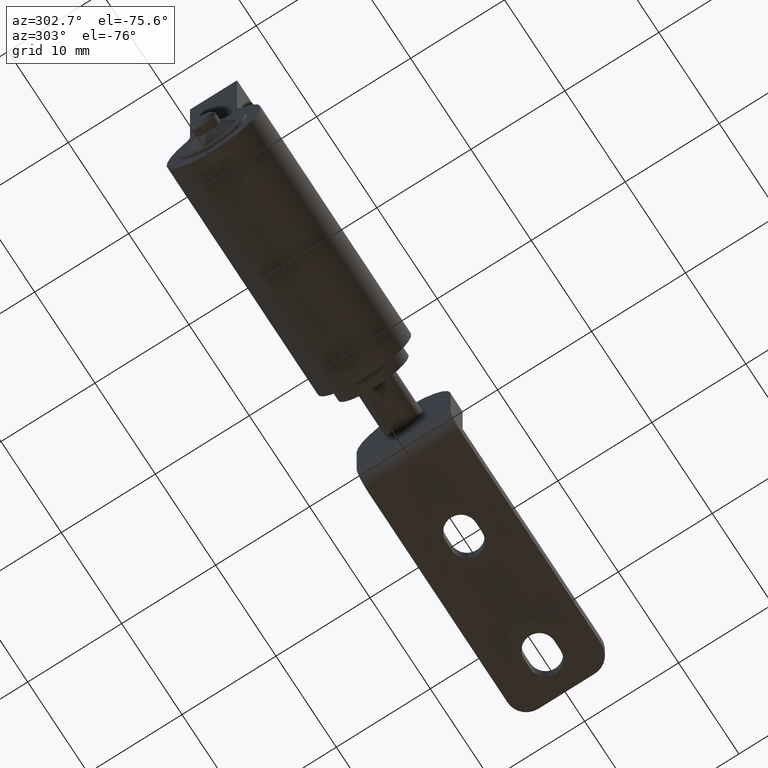
[diagram: clean part render]
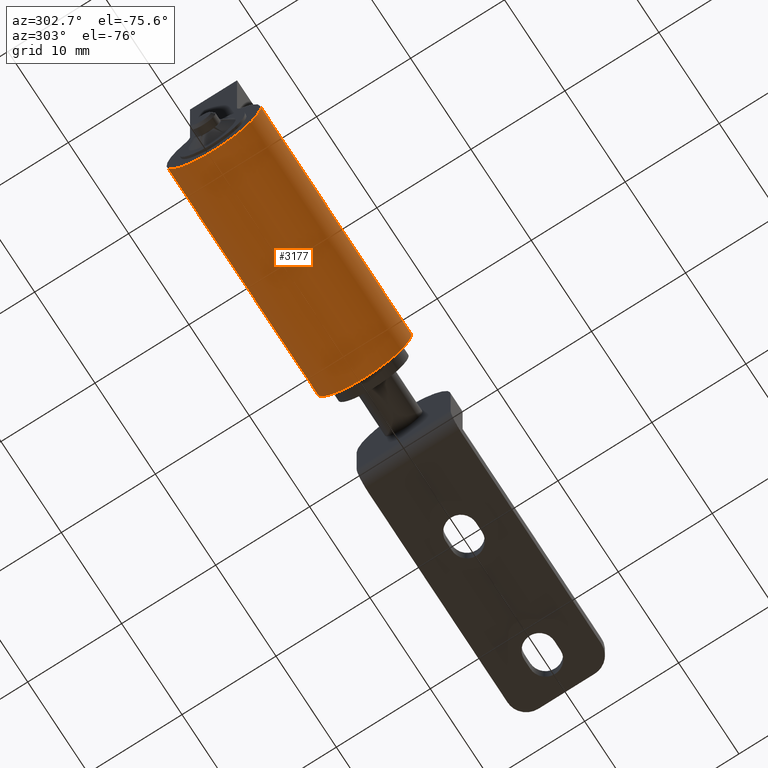
[diagram: same view with one face highlighted and labeled with its STEP entity id]
A machine part, auxiliary view. The second image highlights one B-rep face of the part: STEP entity #3177.
In plain terms, the highlighted face is a freeform B-spline surface patch.
Its self-contained STEP definition (entity closure, byte-faithful):
#2981=CARTESIAN_POINT('',(-31.500000000000000,3.076923076923105,3.941134909984594));
#2982=VERTEX_POINT('',#2981);
#2993=CARTESIAN_POINT('',(-31.500000000000000,-0.000000525353402,-4.999999999999886));
#2994=VERTEX_POINT('',#2993);
#2995=CARTESIAN_POINT('',(-31.500000000000000,3.076923076923105,3.941134909984594));
#2996=CARTESIAN_POINT('',(-31.500000000000011,3.331333988315830,3.742549673830486));
#2997=CARTESIAN_POINT('',(-31.499999999999989,3.860329798043543,3.240064124179581));
#2998=CARTESIAN_POINT('',(-31.500000000000021,4.414731878255359,2.417932928794826));
#2999=CARTESIAN_POINT('',(-31.499999999999918,4.744542454097428,1.625975388314366));
#3000=CARTESIAN_POINT('',(-31.500000000000131,4.922701919310145,0.954111909163023));
#3001=CARTESIAN_POINT('',(-31.500000000000060,5.022249482780462,0.183863339280002));
#3002=CARTESIAN_POINT('',(-31.499999999999869,4.977018191724105,-0.804590937956333));
#3003=CARTESIAN_POINT('',(-31.500000000000050,4.709619186564811,-1.776318560261624));
#3004=CARTESIAN_POINT('',(-31.499999999999961,4.250503626366313,-2.686836979695827));
#3005=CARTESIAN_POINT('',(-31.500000000000242,3.621200775599615,-3.513181592063746));
#3006=CARTESIAN_POINT('',(-31.499999999999709,2.753769162607784,-4.225389927266768));
#3007=CARTESIAN_POINT('',(-31.500000000000600,1.867041971409145,-4.664507692655437));
#3008=CARTESIAN_POINT('',(-31.499999999998469,0.968210512711711,-4.933197070503788));
#3009=CARTESIAN_POINT('',(-31.500000000003279,0.371160006409981,-5.000068208952182));
#3010=CARTESIAN_POINT('',(-31.500000000000000,-0.000000525353402,-4.999999999999886));
#3011=B_SPLINE_CURVE_WITH_KNOTS('',3,(#2995,#2996,#2997,#2998,#2999,#3000,#3001,#3002,#3003,#3004,#3005,#3006,#3007,#3008,#3009,#3010),.UNSPECIFIED.,.F.,.U.,(4,1,1,1,1,1,1,1,1,1,1,1,1,4),(0.000000108458073,0.968226131151772,2.178559869538439,2.953173487549362,3.534126062379706,4.260319165999791,5.277008294660074,6.487269428775698,7.261874692990769,8.326968504879540,9.585711837938300,10.602380939471720,11.280176652105990,12.393643086250030),.UNSPECIFIED.);
#3012=EDGE_CURVE('',#2982,#2994,#3011,.T.);
#3014=CARTESIAN_POINT('',(-31.500000000000000,-3.076923076923055,3.941134909984560));
#3015=VERTEX_POINT('',#3014);
#3016=CARTESIAN_POINT('',(-31.500000000000000,-0.000000525353402,-4.999999999999886));
#3017=CARTESIAN_POINT('',(-31.499999999999972,-0.403446486427322,-5.000098909650752));
#3018=CARTESIAN_POINT('',(-31.500000000000039,-1.032751384286168,-4.923394444756172));
#3019=CARTESIAN_POINT('',(-31.499999999999989,-1.864585789098197,-4.657055351348918));
#3020=CARTESIAN_POINT('',(-31.499999999999950,-2.534708376942112,-4.333169781246394));
#3021=CARTESIAN_POINT('',(-31.500000000000028,-3.120646548094419,-3.927853699135004));
#3022=CARTESIAN_POINT('',(-31.500000000000249,-3.678841270020300,-3.412451373118294));
#3023=CARTESIAN_POINT('',(-31.499999999999631,-4.167790435726963,-2.807867209783779));
#3024=CARTESIAN_POINT('',(-31.500000000000330,-4.552278843305336,-2.113472933475483));
#3025=CARTESIAN_POINT('',(-31.499999999999829,-4.828152664702451,-1.370754717124427));
#3026=CARTESIAN_POINT('',(-31.500000000000039,-4.963719773232173,-0.720609095459771));
#3027=CARTESIAN_POINT('',(-31.499999999999979,-5.015701524686807,0.020772461337169));
#3028=CARTESIAN_POINT('',(-31.500000000000060,-4.962714740760774,0.828996018712478));
#3029=CARTESIAN_POINT('',(-31.499999999999929,-4.738065528976271,1.676093305624981));
#3030=CARTESIAN_POINT('',(-31.500000000000028,-4.350812734206770,2.512791332569486));
#3031=CARTESIAN_POINT('',(-31.500000000000320,-3.835713407124073,3.260998789273711));
#3032=CARTESIAN_POINT('',(-31.500000000000149,-3.344067498491903,3.732620382437092));
#3033=CARTESIAN_POINT('',(-31.500000000000000,-3.076923076923055,3.941134909984560));
#3034=B_SPLINE_CURVE_WITH_KNOTS('',3,(#3016,#3017,#3018,#3019,#3020,#3021,#3022,#3023,#3024,#3025,#3026,#3027,#3028,#3029,#3030,#3031,#3032,#3033),.UNSPECIFIED.,.F.,.U.,(4,1,1,1,1,1,1,1,1,1,1,1,1,1,1,4),(0.000000108444913,1.210309274870062,1.888081155092342,2.614278769019817,3.437304065058731,4.018262595770068,4.889689018436235,5.761139358827400,6.390458000458487,7.261874077336105,7.746010256170464,8.617446907931827,9.682535197692523,10.360324698509480,11.376982821645020,12.393642035530871),.UNSPECIFIED.);
#3035=EDGE_CURVE('',#2994,#3015,#3034,.T.);
#3073=CARTESIAN_POINT('',(-6.499999999999840,-3.076923076923055,3.941134909984560));
#3074=VERTEX_POINT('',#3073);
#3075=CARTESIAN_POINT('',(-6.499999999999840,-3.076923076923055,3.941134909984560));
#3076=CARTESIAN_POINT('',(-31.500000000000000,-3.076923076923055,3.941134909984560));
#3077=QUASI_UNIFORM_CURVE('',1,(#3075,#3076),.UNSPECIFIED.,.F.,.U.);
#3078=EDGE_CURVE('',#3074,#3015,#3077,.T.);
#3100=CARTESIAN_POINT('',(-5.874999999999836,-2.904944561151324,4.069557358809187));
#3101=CARTESIAN_POINT('',(-32.140625000000007,-2.904944561151324,4.069557358809187));
#3102=CARTESIAN_POINT('',(-5.874999999999836,-7.504742398790413,0.786114828647739));
#3103=CARTESIAN_POINT('',(-32.140625000000007,-7.504742398790413,0.786114828647739));
#3104=CARTESIAN_POINT('',(-5.874999999999836,-3.685199809073729,-3.379245828169702));
#3105=CARTESIAN_POINT('',(-32.140625000000007,-3.685199809073729,-3.379245828169702));
#3106=CARTESIAN_POINT('',(-5.874999999999836,0.134342780642955,-7.544606484987144));
#3107=CARTESIAN_POINT('',(-32.140625000000007,0.134342780642955,-7.544606484987144));
#3108=CARTESIAN_POINT('',(-5.874999999999836,3.803170323248506,-3.245904418241743));
#3109=CARTESIAN_POINT('',(-32.140625000000007,3.803170323248506,-3.245904418241743));
#3110=CARTESIAN_POINT('',(-5.874999999999836,7.471997865854057,1.052797648503657));
#3111=CARTESIAN_POINT('',(-32.140625000000007,7.471997865854057,1.052797648503657));
#3112=CARTESIAN_POINT('',(-5.874999999999836,2.758220068769253,4.170398308583871));
#3113=CARTESIAN_POINT('',(-32.140625000000007,2.758220068769253,4.170398308583871));
#3121=(BOUNDED_SURFACE()B_SPLINE_SURFACE(1,2,((#3100,#3102,#3104,#3106,#3108,#3110,#3112),(#3101,#3103,#3105,#3107,#3109,#3111,#3113)),.UNSPECIFIED.,.F.,.F.,.U.)B_SPLINE_SURFACE_WITH_KNOTS((2,2),(3,2,2,3),(0.0,26.265625000000171),(0.0,9.009343073815975,18.018686147631950,27.028029221447920),.UNSPECIFIED.)GEOMETRIC_REPRESENTATION_ITEM()RATIONAL_B_SPLINE_SURFACE(((1.0,0.662620048215737,1.0,0.662620048215737,1.0,0.662620048215737,1.0),(1.0,0.662620048215737,1.0,0.662620048215737,1.0,0.662620048215737,1.0)))REPRESENTATION_ITEM('')SURFACE());
#3122=ORIENTED_EDGE('',*,*,#3035,.F.);
#3123=ORIENTED_EDGE('',*,*,#3012,.F.);
#3124=CARTESIAN_POINT('',(-6.499999999999840,3.076923076923105,3.941134909984594));
#3125=VERTEX_POINT('',#3124);
#3126=CARTESIAN_POINT('',(-6.499999999999840,3.076923076923105,3.941134909984594));
#3127=CARTESIAN_POINT('',(-31.500000000000000,3.076923076923105,3.941134909984594));
#3128=QUASI_UNIFORM_CURVE('',1,(#3126,#3127),.UNSPECIFIED.,.F.,.U.);
#3129=EDGE_CURVE('',#3125,#2982,#3128,.T.);
#3130=ORIENTED_EDGE('',*,*,#3129,.F.);
#3131=CARTESIAN_POINT('',(-6.499999999999840,-0.000000525353391,-4.999999999999887));
#3132=VERTEX_POINT('',#3131);
#3133=CARTESIAN_POINT('',(-6.499999999999840,3.076923076923105,3.941134909984594));
#3134=CARTESIAN_POINT('',(-6.499999999999842,3.267724642288208,3.792185295453172));
#3135=CARTESIAN_POINT('',(-6.499999999999848,3.663637987959813,3.433933975916530));
#3136=CARTESIAN_POINT('',(-6.499999999999838,4.149851066888955,2.827174753068459));
#3137=CARTESIAN_POINT('',(-6.499999999999856,4.612785447814776,2.010821715827131));
#3138=CARTESIAN_POINT('',(-6.499999999999827,4.895814457915130,1.162749427216747));
#3139=CARTESIAN_POINT('',(-6.499999999999864,5.028495826357171,0.135719201058360));
#3140=CARTESIAN_POINT('',(-6.499999999999804,4.968781014844682,-0.853520296064265));
#3141=CARTESIAN_POINT('',(-6.499999999999911,4.710384621149250,-1.741757687422783));
#3142=CARTESIAN_POINT('',(-6.499999999999811,4.357237766037152,-2.486435312153012));
#3143=CARTESIAN_POINT('',(-6.499999999999866,3.875601942548303,-3.216659178256953));
#3144=CARTESIAN_POINT('',(-6.499999999999812,3.158707536225950,-3.925082100137732));
#3145=CARTESIAN_POINT('',(-6.499999999999877,2.351817438109535,-4.438093768603650));
#3146=CARTESIAN_POINT('',(-6.499999999999851,1.577463655332934,-4.767167222721786));
#3147=CARTESIAN_POINT('',(-6.499999999999576,0.806862003059196,-4.957420200163299));
#3148=CARTESIAN_POINT('',(-6.500000000000447,0.258190136617454,-5.000012429775844));
#3149=CARTESIAN_POINT('',(-6.499999999999840,-0.000000525353391,-4.999999999999887));
#3150=B_SPLINE_CURVE_WITH_KNOTS('',3,(#3133,#3134,#3135,#3136,#3137,#3138,#3139,#3140,#3141,#3142,#3143,#3144,#3145,#3146,#3147,#3148,#3149),.UNSPECIFIED.,.F.,.U.,(4,1,1,1,1,1,1,1,1,1,1,1,1,1,4),(0.000000108460867,0.726171934066665,1.597601772377173,2.323799473587668,3.534126062381528,4.260319166001422,5.422248086078912,6.487269428776664,7.019832884796387,7.891249839417884,9.101581824913293,10.021429437734049,10.747616598018030,11.619068589921330,12.393643086250030),.UNSPECIFIED.);
#3151=EDGE_CURVE('',#3125,#3132,#3150,.T.);
#3152=ORIENTED_EDGE('',*,*,#3151,.T.);
#3153=CARTESIAN_POINT('',(-6.499999999999840,-0.000000525353391,-4.999999999999887));
#3154=CARTESIAN_POINT('',(-6.499999999999873,-0.322744046022656,-5.000038289098297));
#3155=CARTESIAN_POINT('',(-6.499999999999794,-0.855259215082669,-4.948251461535061));
#3156=CARTESIAN_POINT('',(-6.499999999999867,-1.652909649912512,-4.738980208711034));
#3157=CARTESIAN_POINT('',(-6.499999999999845,-2.396815422167164,-4.418627862222546));
#3158=CARTESIAN_POINT('',(-6.499999999999816,-3.072009308933600,-3.970630764883762));
#3159=CARTESIAN_POINT('',(-6.499999999999893,-3.680602575746734,-3.414140592181279));
#3160=CARTESIAN_POINT('',(-6.499999999999860,-4.126277475985395,-2.857527388633627));
#3161=CARTESIAN_POINT('',(-6.499999999999808,-4.515209298259551,-2.186144109315211));
#3162=CARTESIAN_POINT('',(-6.499999999999915,-4.837330961419334,-1.390705334225886));
#3163=CARTESIAN_POINT('',(-6.499999999999984,-5.002768552831256,-0.512606152265593));
#3164=CARTESIAN_POINT('',(-6.499999999999595,-5.004477445862344,0.296140648620404));
#3165=CARTESIAN_POINT('',(-6.500000000000148,-4.918773807092841,0.985920500617322));
#3166=CARTESIAN_POINT('',(-6.500000000000020,-4.694872961766635,1.814401607541019));
#3167=CARTESIAN_POINT('',(-6.499999999999107,-4.267160691913026,2.672246743030242));
#3168=CARTESIAN_POINT('',(-6.500000000001259,-3.686699325239249,3.411033687238514));
#3169=CARTESIAN_POINT('',(-6.499999999998257,-3.280445410597994,3.782259857391073));
#3170=CARTESIAN_POINT('',(-6.499999999999840,-3.076923076923055,3.941134909984560));
#3171=B_SPLINE_CURVE_WITH_KNOTS('',3,(#3153,#3154,#3155,#3156,#3157,#3158,#3159,#3160,#3161,#3162,#3163,#3164,#3165,#3166,#3167,#3168,#3169,#3170),.UNSPECIFIED.,.F.,.U.,(4,1,1,1,1,1,1,1,1,1,1,1,1,1,1,4),(0.000000108443784,0.968226049056948,1.597601636925150,2.469038986856639,3.388887690439640,4.018262595769766,4.938115520538655,5.519051694146135,6.342040520244144,7.503954534205816,8.181728050849824,8.762686454191073,9.585711025268390,10.747615686838410,11.619067604864870,12.393642035530879),.UNSPECIFIED.);
#3172=EDGE_CURVE('',#3132,#3074,#3171,.T.);
#3173=ORIENTED_EDGE('',*,*,#3172,.T.);
#3174=ORIENTED_EDGE('',*,*,#3078,.T.);
#3175=EDGE_LOOP('',(#3122,#3123,#3130,#3152,#3173,#3174));
#3176=FACE_OUTER_BOUND('',#3175,.T.);
#3177=ADVANCED_FACE('',(#3176),#3121,.T.);